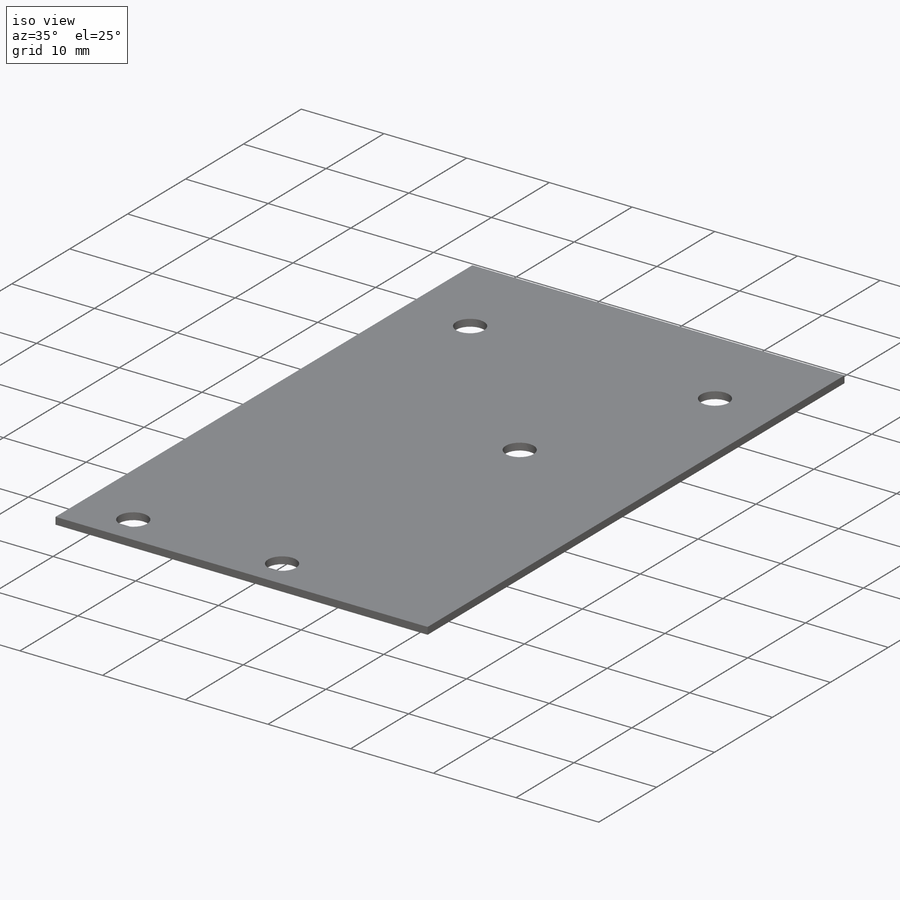
[diagram: iso view]
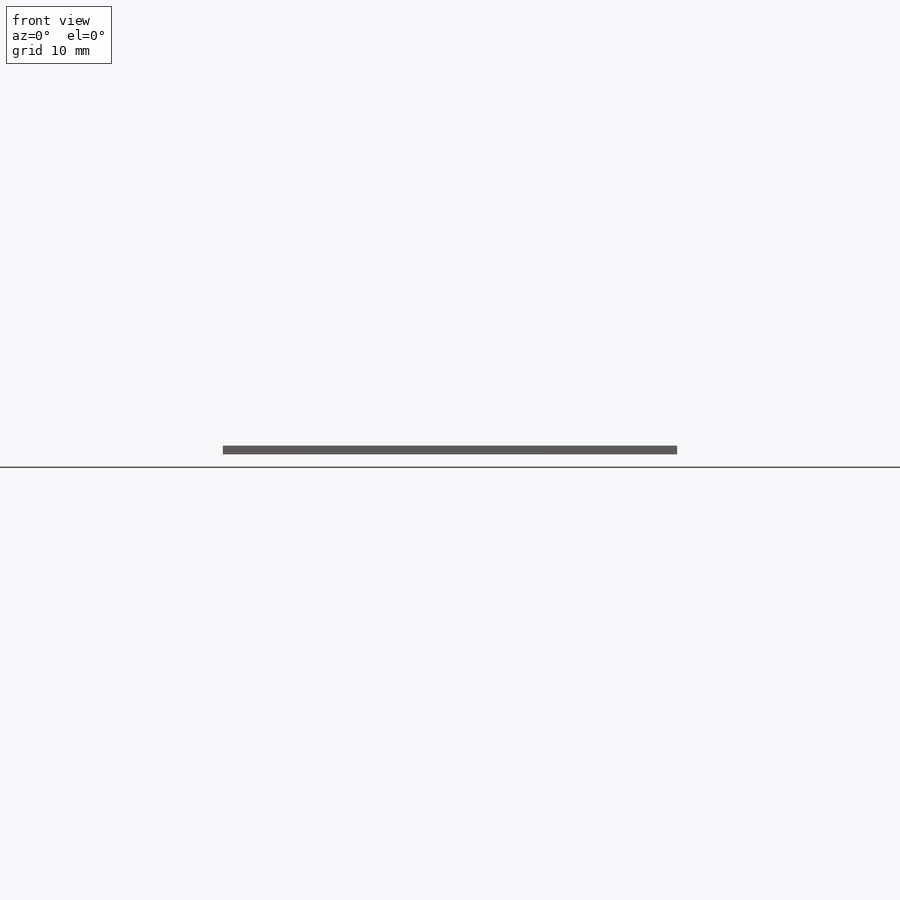
[diagram: front view]
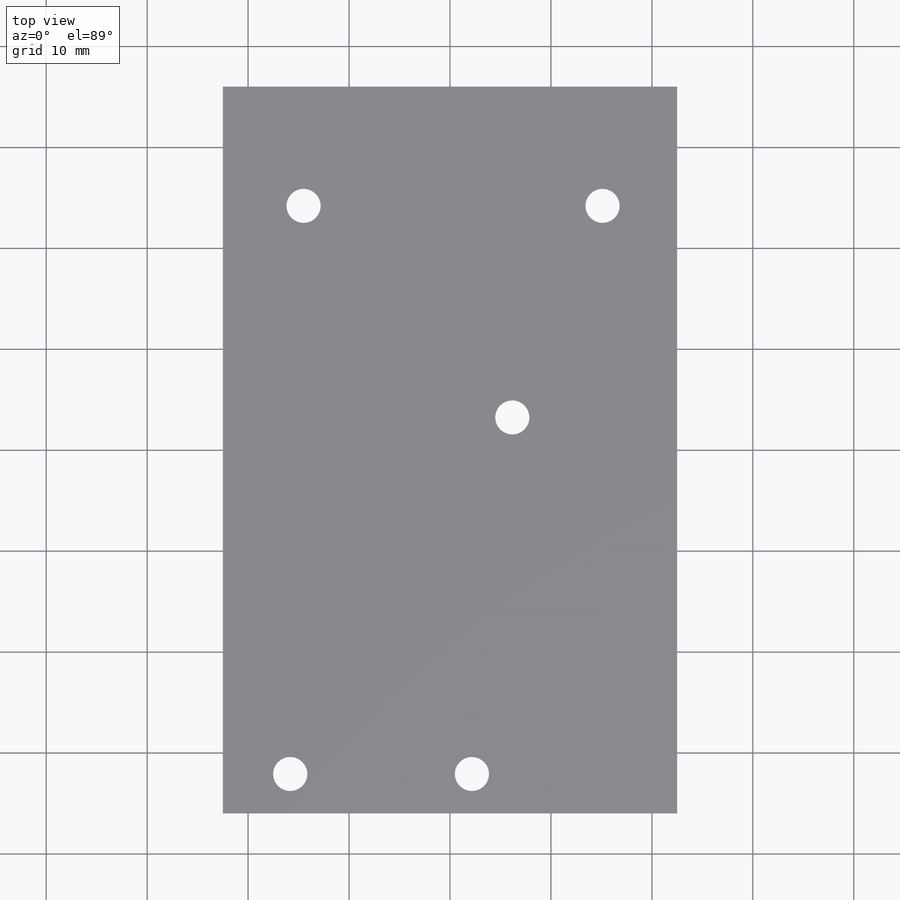
[diagram: top view]
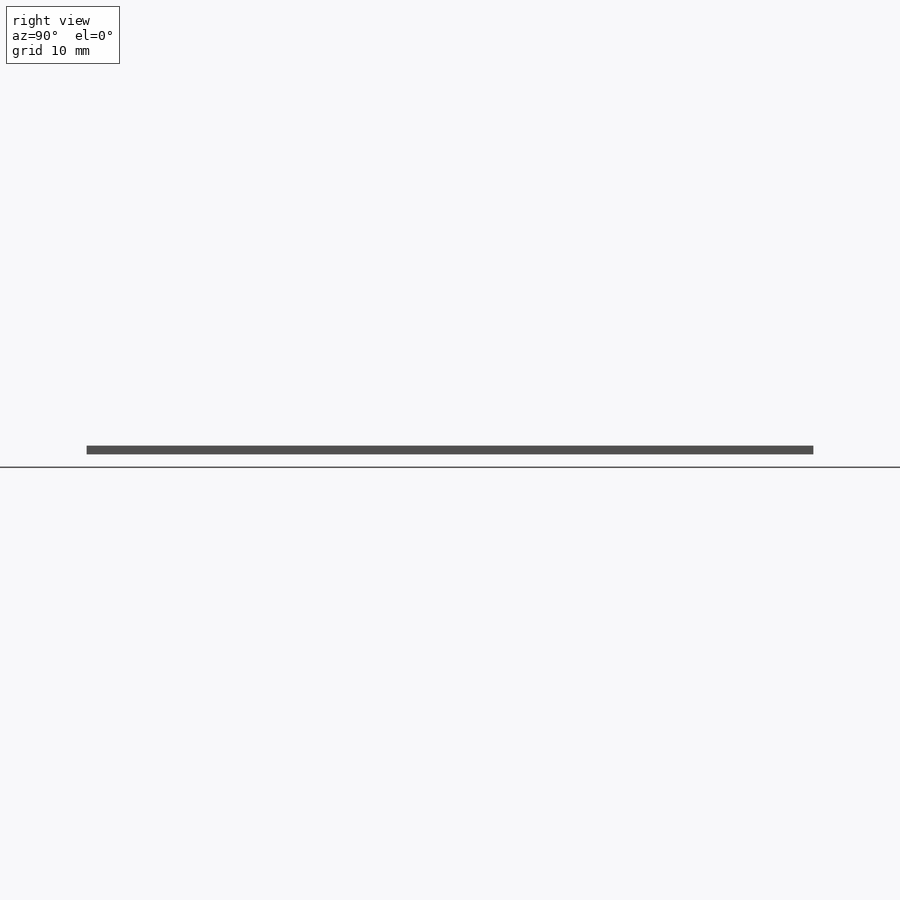
[diagram: right view]
SOLIDWORKS PART (.sldprt)
format: sldprt  version: not decoded by parser v0  size: 222,208 bytes
history: native  units: mm
features: sketch x13, sheet_metal_op x3, material x1, hole x1 + 2 further entries (+12 scaffold rows collapsed; 2 parser-record rows omitted)
feature tree (34):
  scaffold x12  (default folders/planes/origin — collapsed)
  material  "Material <not specified>"
  sketch  "Sketch1"  dims[c1.D1=72.0mm c1.D2=45.0mm c2.D1=0.762mm c2.D2=0.389 c2.D3=1.1938mm c2.D6=500.0mm]
  sheet_metal_op  "Base-Flange1"
  sketch  "Sketch6"  dims[D1=60.0mm D2=76.0mm]
  sketch  "Sketch7"  dims[D1=30.0mm]
  sketch  "Sketch8"  dims[D1=0.0mm D2=0.0mm]
  hole  "Need to Reposition"  Diameter=3.4mm Depth=12mm
  sketch  "Sketch13"
  sketch  "Sketch12"  dims[hole-wizard template sketch: 50 standard entries collapsed; hole parameters above]
  sketch  "Bend-Lines1"
  sketch  "Bounding-Box1"
  sheet_metal_op  "Sheet-Metal(1)"
  "Flat-Pattern(1)"
  sketch  "Bend-Lines2"
  sketch  "Bounding-Box2"
  parser-record x2  (decoder bookkeeping rows leaked as tree rows — omitted from the tree; the rows remain in map.json)
  sheet_metal_op  "Sheet-Metal(2)"
  "Flat-Pattern(1)"
  sketch  "Bend-Lines2"
  sketch  "Bounding-Box2"
  sketch  "Sketch8-1"  dims[D1=0.0mm D2=0.0mm]
decode coverage: 7 of 17 modeling features carry decoded parameters; 2 rows unclassified (native names shown)
note: ~ marks probable driven/reference dimensions
note: suppression state not decoded; provenance and decode notes live in map.json
